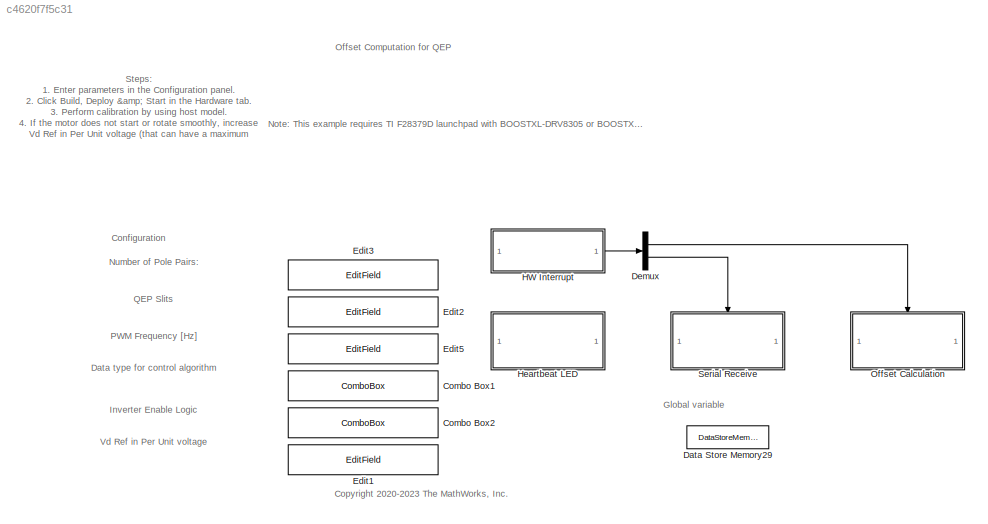
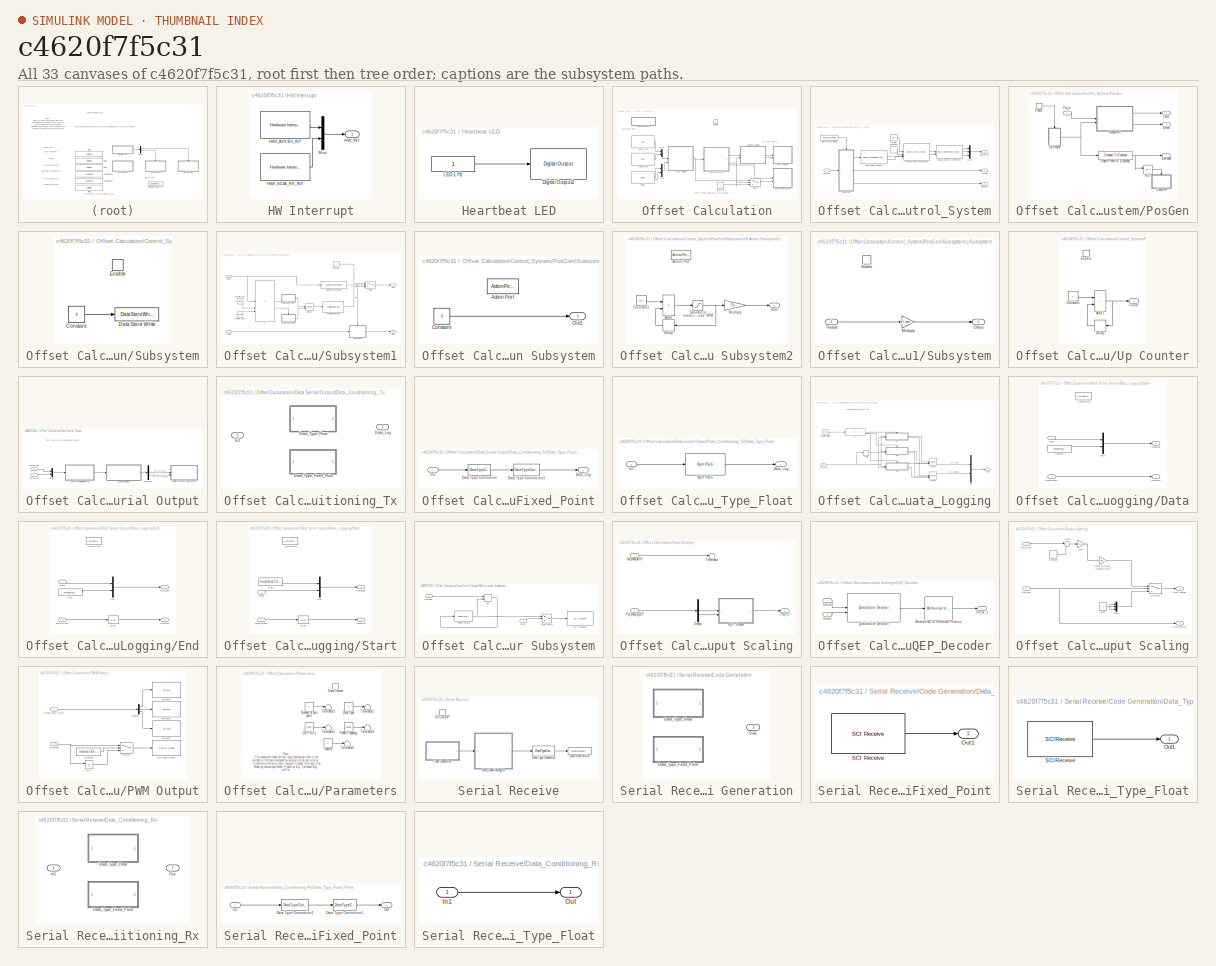
[diagram: thumbnail index - all 33 canvases of the model, root first then tree order]
MODEL slx_c4620f7f5c31
KIND model
CONFIG AbsTol = auto
CONFIG EnableMultiTasking = on
CONFIG FixedStep = auto
CONFIG InitFcn = mcb_pmsm_offset_data;\nmotor.QEPSlits   = eval(get_param([bdroot '/Offset Calculation/Parameters/QEP Slits'], 'Value'));     \ntarget = mcb_SetProcessorDetails('F28379D',PWM_frequency);\n\n%Read inverter logic from 'Configuration' panel on model\ninverter.EnableLogic = eval(get_param([bdroot '/Offset Calculation/Parameters/Inverter'],'Value'));
CONFIG MaxStep = auto
CONFIG MinStep = auto
CONFIG RelTol = 1e-3
CONFIG SampleTimeConstraint = Unconstrained
CONFIG SolverName = FixedStepDiscrete
CONFIG StartTime = 0.0
CONFIG StopTime = 2
BLOCK [ComboBox] Combo Box1
  LabelPosition = Hide
  SelectedLabel = single
BLOCK [ComboBox] Combo Box2
  LabelPosition = Hide
  SelectedLabel = Active High
BLOCK [DataStoreMemory] Data Store Memory29
  DataStoreName = Enable
  OutDataTypeStr = boolean
  ReadBeforeWriteMsg = warning
  ShowAdditionalParam = off
  WriteAfterReadMsg = warning
  WriteAfterWriteMsg = warning
BLOCK [Demux] Demux
  Outputs = 2
BLOCK [EditField] Edit1
  Alignment = Center
  LabelPosition = Hide
  ShowInitialText = on
BLOCK [EditField] Edit2
  Alignment = Center
  LabelPosition = Hide
  ShowInitialText = on
BLOCK [EditField] Edit3
  Alignment = Center
  LabelPosition = Hide
  ShowInitialText = on
BLOCK [EditField] Edit5
  Alignment = Center
  LabelPosition = Hide
  ShowInitialText = on
BLOCK [SubSystem] HW Interrupt
BLOCK [Reference] HW Interrupt/HWI_ADCB1_INT  REF=svdschedulerlib/Hardware Interrupt v2
  LibrarySourceBlock = c2000lib/Scheduling/Hardware Interrupt
  SourceBlock = svdschedulerlib/Hardware Interrupt v2
  SourceType = HardwareInterrupt
  UserDataPersistent = on
BLOCK [Reference] HW Interrupt/HWI_SCIA_RX_INT  REF=svdschedulerlib/Hardware Interrupt v2
  LibrarySourceBlock = c2000lib/Scheduling/Hardware Interrupt
  SourceBlock = svdschedulerlib/Hardware Interrupt v2
  SourceType = HardwareInterrupt
  UserDataPersistent = on
BLOCK [Outport] HW Interrupt/HW_INT
BLOCK [Mux] HW Interrupt/Mux
  DisplayOption = bar
  Inputs = 2
BLOCK [SubSystem] Heartbeat LED
  TreatAsAtomicUnit = on
BLOCK [Reference] Heartbeat LED/Digital Output2  REF=c2837xDlib/Digital Output
  SourceBlock = c2837xDlib/Digital Output
  SourceType = F2837x GPIO Digital Output
  UserDataPersistent = on
BLOCK [Constant] Heartbeat LED/LED 1 Hz
  OutDataTypeStr = uint16
  SampleTime = 0.5
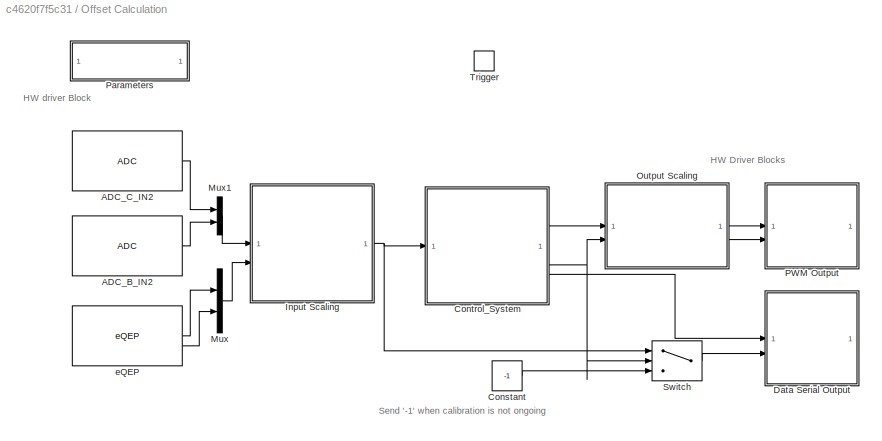
BLOCK [SubSystem] Offset Calculation
BLOCK [Reference] Offset Calculation/ADC_B_IN2  REF=c2802xlib/ADC
  SourceBlock = c2802xlib/ADC
  SourceType = ADC Type 3-5
  UserDataPersistent = on
BLOCK [Reference] Offset Calculation/ADC_C_IN2  REF=c2802xlib/ADC
  SourceBlock = c2802xlib/ADC
  SourceType = ADC Type 3-5
  UserDataPersistent = on
BLOCK [Constant] Offset Calculation/Constant
  OutDataTypeStr = dataType
  Value = -1
BLOCK [SubSystem] Offset Calculation/Control_System
BLOCK [Constant] Offset Calculation/Control_System/Constant
  OutDataTypeStr = dataType
  SampleTime = -1
  Value = 0
BLOCK [DataStoreRead] Offset Calculation/Control_System/Data Store Read
  DataStoreName = Enable
  IndexOptions = Index vector (dialog)
  Indices = 1
  OutputSizes = 1
BLOCK [Outport] Offset Calculation/Control_System/EnPWM
  Port = 2
  VectorParamsAs1DForOutWhenUnconnected = off
BLOCK [Reference] Offset Calculation/Control_System/Inverse Park Transform  REF=mcbcontrolslib/Inverse Park Transform
  SourceBlock = mcbcontrolslib/Inverse Park Transform
  SourceType = Inverse Park Transform
BLOCK [Mux] Offset Calculation/Control_System/Mux1
  DisplayOption = bar
  Inputs = 3
BLOCK [Outport] Offset Calculation/Control_System/Offset
  Port = 3
  VectorParamsAs1DForOutWhenUnconnected = off
BLOCK [SubSystem] Offset Calculation/Control_System/PosGen
BLOCK [Outport] Offset Calculation/Control_System/PosGen/EnPWM
  InitialOutput = 0
  OutputWhenDisabled = reset
  Port = 3
BLOCK [EnablePort] Offset Calculation/Control_System/PosGen/Enable
  ShowOutputPort = on
  StatesWhenEnabling = reset
BLOCK [Reference] Offset Calculation/Control_System/PosGen/Enable PWM for 15 seconds  REF=simulink/Logic and Bit
Operations/Compare
To Constant
  SourceBlock = simulink/Logic and Bit\nOperations/Compare\nTo Constant
  SourceType = Compare To Constant
BLOCK [Logic] Offset Calculation/Control_System/PosGen/NOT
  AllPortsSameDT = off
  IconShape = distinctive
  Operator = NOT
  OutDataTypeStr = boolean
BLOCK [Outport] Offset Calculation/Control_System/PosGen/Offset
  Port = 2
BLOCK [Inport] Offset Calculation/Control_System/PosGen/Pos_In
BLOCK [SubSystem] Offset Calculation/Control_System/PosGen/Subsystem
BLOCK [Constant] Offset Calculation/Control_System/PosGen/Subsystem/Constant
  OutDataTypeStr = Inherit: Inherit via back propagation
  Value = 0
BLOCK [DataStoreWrite] Offset Calculation/Control_System/PosGen/Subsystem/Data Store Write
  DataStoreName = Enable
  IndexOptions = Index vector (dialog)
  Indices = 1
  OutputSizes = 1
BLOCK [EnablePort] Offset Calculation/Control_System/PosGen/Subsystem/Enable
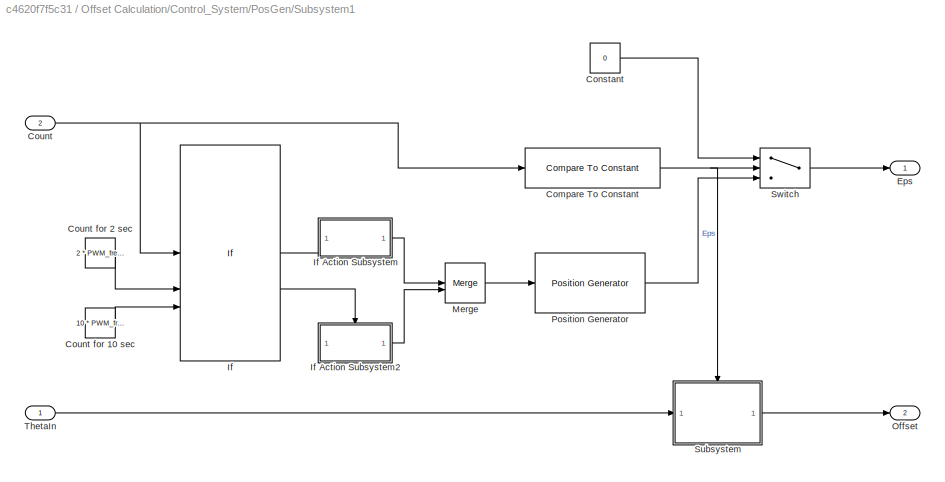
BLOCK [SubSystem] Offset Calculation/Control_System/PosGen/Subsystem1
BLOCK [Reference] Offset Calculation/Control_System/PosGen/Subsystem1/Compare To Constant  REF=simulink/Logic and Bit
Operations/Compare
To Constant
  SourceBlock = simulink/Logic and Bit\nOperations/Compare\nTo Constant
  SourceType = Compare To Constant
BLOCK [Constant] Offset Calculation/Control_System/PosGen/Subsystem1/Constant
  OutDataTypeStr = dataType
  SampleTime = -1
  Value = 0
BLOCK [Inport] Offset Calculation/Control_System/PosGen/Subsystem1/Count
  Port = 2
BLOCK [Constant] Offset Calculation/Control_System/PosGen/Subsystem1/Count for 10 sec
  OutDataTypeStr = uint32
  SampleTime = -1
  Value = 10 * PWM_frequency
BLOCK [Constant] Offset Calculation/Control_System/PosGen/Subsystem1/Count for 2 sec
  OutDataTypeStr = uint32
  SampleTime = -1
  Value = 2 * PWM_frequency
BLOCK [Outport] Offset Calculation/Control_System/PosGen/Subsystem1/Eps
BLOCK [If] Offset Calculation/Control_System/PosGen/Subsystem1/If
  ElseIfExpressions = u1 < u3
  IfExpression = u1 < u2
  NumInputs = 3
  ShowElse = off
BLOCK [SubSystem] Offset Calculation/Control_System/PosGen/Subsystem1/If Action Subsystem
  TreatAsAtomicUnit = on
BLOCK [ActionPort] Offset Calculation/Control_System/PosGen/Subsystem1/If Action Subsystem/Action Port
  ActionPortLabel = if(u1 < u2)
BLOCK [Constant] Offset Calculation/Control_System/PosGen/Subsystem1/If Action Subsystem/Constant
  OutDataTypeStr = dataType
  SampleTime = -1
  Value = 0
BLOCK [Outport] Offset Calculation/Control_System/PosGen/Subsystem1/If Action Subsystem/Out1
BLOCK [SubSystem] Offset Calculation/Control_System/PosGen/Subsystem1/If Action Subsystem2
  TreatAsAtomicUnit = on
BLOCK [ActionPort] Offset Calculation/Control_System/PosGen/Subsystem1/If Action Subsystem2/Action Port
  ActionPortLabel = elseif(u1 < u3)
BLOCK [Sum] Offset Calculation/Control_System/PosGen/Subsystem1/If Action Subsystem2/Add1
  IconShape = rectangular
BLOCK [Constant] Offset Calculation/Control_System/PosGen/Subsystem1/If Action Subsystem2/Constant1
  OutDataTypeStr = dataType
  SampleTime = -1
  Value = 1e-3
BLOCK [Delay] Offset Calculation/Control_System/PosGen/Subsystem1/If Action Subsystem2/Delay
  DelayLength = 1
  InputPortMap = u0
BLOCK [Gain] Offset Calculation/Control_System/PosGen/Subsystem1/If Action Subsystem2/Multiply
  Gain = Ts
  OutDataTypeStr = dataType
BLOCK [Outport] Offset Calculation/Control_System/PosGen/Subsystem1/If Action Subsystem2/Out1
BLOCK [Saturate] Offset Calculation/Control_System/PosGen/Subsystem1/If Action Subsystem2/Saturate to 'motor.calibSpeed' RPM
  LowerLimit = 0
  UpperLimit = motor.polePairs * motor.calibSpeed / 60
BLOCK [Merge] Offset Calculation/Control_System/PosGen/Subsystem1/Merge
BLOCK [Outport] Offset Calculation/Control_System/PosGen/Subsystem1/Offset
  Port = 2
BLOCK [Reference] Offset Calculation/Control_System/PosGen/Subsystem1/Position Generator  REF=mcbcontrolslib/Position Generator
  SourceBlock = mcbcontrolslib/Position Generator
  SourceType = Position Generator
BLOCK [SubSystem] Offset Calculation/Control_System/PosGen/Subsystem1/Subsystem
BLOCK [EnablePort] Offset Calculation/Control_System/PosGen/Subsystem1/Subsystem/Enable
BLOCK [Gain] Offset Calculation/Control_System/PosGen/Subsystem1/Subsystem/Multiply
  Gain = 1 / motor.polePairs
  OutDataTypeStr = Inherit: Same as input
BLOCK [Outport] Offset Calculation/Control_System/PosGen/Subsystem1/Subsystem/Offset
  InitialOutput = 0
  OutputWhenDisabled = reset
BLOCK [Inport] Offset Calculation/Control_System/PosGen/Subsystem1/Subsystem/ThetaIn
BLOCK [Switch] Offset Calculation/Control_System/PosGen/Subsystem1/Switch
  Criteria = u2 > Threshold
  InputSameDT = off
  SaturateOnIntegerOverflow = off
  Threshold = 0.5
BLOCK [Inport] Offset Calculation/Control_System/PosGen/Subsystem1/ThetaIn
BLOCK [Outport] Offset Calculation/Control_System/PosGen/Theta
BLOCK [SubSystem] Offset Calculation/Control_System/PosGen/Up Counter
BLOCK [Sum] Offset Calculation/Control_System/PosGen/Up Counter/Add1
  IconShape = rectangular
  SaturateOnIntegerOverflow = on
BLOCK [Constant] Offset Calculation/Control_System/PosGen/Up Counter/Constant
  OutDataTypeStr = uint32
BLOCK [Outport] Offset Calculation/Control_System/PosGen/Up Counter/Count
  InitialOutput = 0
  OutputWhenDisabled = reset
BLOCK [Delay] Offset Calculation/Control_System/PosGen/Up Counter/Delay
  DelayLength = 1
  InputPortMap = u0
BLOCK [EnablePort] Offset Calculation/Control_System/PosGen/Up Counter/Enable
  StatesWhenEnabling = reset
BLOCK [Inport] Offset Calculation/Control_System/Pos_PU
BLOCK [Reference] Offset Calculation/Control_System/Sine-Cosine Lookup  REF=mcbcontrolslib/SinCos Embedded Optimized
  SourceBlock = mcbcontrolslib/SinCos Embedded Optimized
  SourceType = SinCos Embedded Optimized
BLOCK [Reference] Offset Calculation/Control_System/Space Vector Generator  REF=mcbcontrolslib/PWM Reference Generator
  SourceBlock = mcbcontrolslib/PWM Reference Generator
  SourceType = PWM Modulation
BLOCK [Outport] Offset Calculation/Control_System/Vabc in PU
  VectorParamsAs1DForOutWhenUnconnected = off
BLOCK [Constant] Offset Calculation/Control_System/Vd_Ref
  OutDataTypeStr = dataType
  SampleTime = -1
  Value = 0.15
BLOCK [SubSystem] Offset Calculation/Data Serial Output
BLOCK [Inport] Offset Calculation/Data Serial Output/Data1_Log
  Port = 2
BLOCK [Inport] Offset Calculation/Data Serial Output/Data2_Log
BLOCK [SubSystem] Offset Calculation/Data Serial Output/Data_Conditioning_Tx
  Variant = on
BLOCK [Outport] Offset Calculation/Data Serial Output/Data_Conditioning_Tx/Data_Log
BLOCK [SubSystem] Offset Calculation/Data Serial Output/Data_Conditioning_Tx/Data_Type_Fixed_Point
  VariantControl = ~isequal(dataType,'single')
BLOCK [DataTypeConversion] Offset Calculation/Data Serial Output/Data_Conditioning_Tx/Data_Type_Fixed_Point/Data Type Conversion
  OutDataTypeStr = fixdt(1,32,28)
  RndMeth = Simplest
  SaturateOnIntegerOverflow = off
BLOCK [DataTypeConversion] Offset Calculation/Data Serial Output/Data_Conditioning_Tx/Data_Type_Fixed_Point/Data Type Conversion3
  ConvertRealWorld = Stored Integer (SI)
  OutDataTypeStr = uint32
  RndMeth = Simplest
  SaturateOnIntegerOverflow = off
BLOCK [Outport] Offset Calculation/Data Serial Output/Data_Conditioning_Tx/Data_Type_Fixed_Point/Data_Log
BLOCK [Inport] Offset Calculation/Data Serial Output/Data_Conditioning_Tx/Data_Type_Fixed_Point/In1
BLOCK [SubSystem] Offset Calculation/Data Serial Output/Data_Conditioning_Tx/Data_Type_Float
  VariantControl = isequal(dataType, 'single')
BLOCK [Reference] Offset Calculation/Data Serial Output/Data_Conditioning_Tx/Data_Type_Float/Byte Pack  REF=svdutilitieslib/Byte Pack
  SourceBlock = svdutilitieslib/Byte Pack
  SourceType = Byte pack
BLOCK [Outport] Offset Calculation/Data Serial Output/Data_Conditioning_Tx/Data_Type_Float/Data_Log
BLOCK [Inport] Offset Calculation/Data Serial Output/Data_Conditioning_Tx/Data_Type_Float/In1
BLOCK [Inport] Offset Calculation/Data Serial Output/Data_Conditioning_Tx/In1
BLOCK [SubSystem] Offset Calculation/Data Serial Output/Data_Logging
BLOCK [Reference] Offset Calculation/Data Serial Output/Data_Logging/Counter Limited  REF=simulink/Sources/Counter
Limited
  SourceBlock = simulink/Sources/Counter\nLimited
  SourceType = Counter Limited
BLOCK [SubSystem] Offset Calculation/Data Serial Output/Data_Logging/Data
  TreatAsAtomicUnit = on
BLOCK [ActionPort] Offset Calculation/Data Serial Output/Data_Logging/Data/Action Port
  ActionPortLabel = else
BLOCK [Inport] Offset Calculation/Data Serial Output/Data_Logging/Data/Data
BLOCK [Outport] Offset Calculation/Data Serial Output/Data_Logging/Data/Data_out
  VectorParamsAs1DForOutWhenUnconnected = off
BLOCK [Inport] Offset Calculation/Data Serial Output/Data_Logging/Data/Data_width
  Port = 2
BLOCK [Constant] Offset Calculation/Data Serial Output/Data_Logging/Data/Dummy
  OutDataTypeStr = uint32
  Value = hex2dec('0000')
BLOCK [Outport] Offset Calculation/Data Serial Output/Data_Logging/Data/Iteration
  Port = 2
  VectorParamsAs1DForOutWhenUnconnected = off
BLOCK [Mux] Offset Calculation/Data Serial Output/Data_Logging/Data/Mux
  DisplayOption = bar
  Inputs = 2
BLOCK [Inport] Offset Calculation/Data Serial Output/Data_Logging/Data_Log
BLOCK [SubSystem] Offset Calculation/Data Serial Output/Data_Logging/End
  TreatAsAtomicUnit = on
BLOCK [ActionPort] Offset Calculation/Data Serial Output/Data_Logging/End/Action Port
  ActionPortLabel = elseif(u1 == 599)
BLOCK [Bias] Offset Calculation/Data Serial Output/Data_Logging/End/Bias
  Bias = 1
  SaturateOnIntegerOverflow = off
BLOCK [Inport] Offset Calculation/Data Serial Output/Data_Logging/End/Data
BLOCK [Outport] Offset Calculation/Data Serial Output/Data_Logging/End/Data_out
  VectorParamsAs1DForOutWhenUnconnected = off
BLOCK [Inport] Offset Calculation/Data Serial Output/Data_Logging/End/Data_width
  Port = 2
BLOCK [Constant] Offset Calculation/Data Serial Output/Data_Logging/End/End
  OutDataTypeStr = uint32
  Value = hex2dec('45454545')
BLOCK [Outport] Offset Calculation/Data Serial Output/Data_Logging/End/Iteration
  Port = 2
  VectorParamsAs1DForOutWhenUnconnected = off
BLOCK [Mux] Offset Calculation/Data Serial Output/Data_Logging/End/Mux
  DisplayOption = bar
  Inputs = 2
BLOCK [If] Offset Calculation/Data Serial Output/Data_Logging/If
  ElseIfExpressions = u1 == 599
  IfExpression = u1 == 0
BLOCK [Merge] Offset Calculation/Data Serial Output/Data_Logging/Merge
  Inputs = 3
BLOCK [Merge] Offset Calculation/Data Serial Output/Data_Logging/Merge1
  Inputs = 3
BLOCK [Mux] Offset Calculation/Data Serial Output/Data_Logging/Mux
  DisplayOption = bar
  Inputs = 2
BLOCK [Outport] Offset Calculation/Data Serial Output/Data_Logging/SCI_Tx
BLOCK [SubSystem] Offset Calculation/Data Serial Output/Data_Logging/Start
  TreatAsAtomicUnit = on
BLOCK [ActionPort] Offset Calculation/Data Serial Output/Data_Logging/Start/Action Port
  ActionPortLabel = if(u1 == 0)
BLOCK [Bias] Offset Calculation/Data Serial Output/Data_Logging/Start/Bias
  Bias = 1
  SaturateOnIntegerOverflow = off
BLOCK [Inport] Offset Calculation/Data Serial Output/Data_Logging/Start/Data
BLOCK [Outport] Offset Calculation/Data Serial Output/Data_Logging/Start/Data_out
  VectorParamsAs1DForOutWhenUnconnected = off
BLOCK [Inport] Offset Calculation/Data Serial Output/Data_Logging/Start/Data_width
  Port = 2
BLOCK [Outport] Offset Calculation/Data Serial Output/Data_Logging/Start/Iteration
  Port = 2
  VectorParamsAs1DForOutWhenUnconnected = off
BLOCK [Mux] Offset Calculation/Data Serial Output/Data_Logging/Start/Mux
  DisplayOption = bar
  Inputs = 2
BLOCK [Constant] Offset Calculation/Data Serial Output/Data_Logging/Start/Start
  OutDataTypeStr = uint32
  Value = hex2dec('53535353')
BLOCK [Width] Offset Calculation/Data Serial Output/Data_Logging/Width
  DataType = uint16
  OutDataTypeMode = All ports same datatype
BLOCK [Demux] Offset Calculation/Data Serial Output/Demux2
  Outputs = 2
BLOCK [Mux] Offset Calculation/Data Serial Output/Mux
  DisplayOption = bar
  Inputs = 2
BLOCK [SubSystem] Offset Calculation/Data Serial Output/While Iterator Subsystem
  TreatAsAtomicUnit = on
BLOCK [Sum] Offset Calculation/Data Serial Output/While Iterator Subsystem/Add
  IconShape = rectangular
  Inputs = +-
  OutDataTypeStr = Inherit: Same as first input
BLOCK [Inport] Offset Calculation/Data Serial Output/While Iterator Subsystem/Data
BLOCK [MultiPortSwitch] Offset Calculation/Data Serial Output/While Iterator Subsystem/Index Vector
  InputSameDT = off
  Inputs = 1
  SaturateOnIntegerOverflow = off
BLOCK [Inport] Offset Calculation/Data Serial Output/While Iterator Subsystem/Iteration
  Port = 2
BLOCK [Reference] Offset Calculation/Data Serial Output/While Iterator Subsystem/SCI Transmit  REF=c280xlib/SCI Transmit
  SourceBlock = c280xlib/SCI Transmit
  SourceType = C28x SCI Transmit
BLOCK [WhileIterator] Offset Calculation/Data Serial Output/While Iterator Subsystem/While Iterator
  MaxIters = -1
  OutputDataType = int16
  ShowIterationPort = on
  WhileBlockType = do-while
BLOCK [SubSystem] Offset Calculation/Input Scaling
BLOCK [Demux] Offset Calculation/Input Scaling/Demux
  Outputs = 2
BLOCK [Inport] Offset Calculation/Input Scaling/Iab_meas_ADC
BLOCK [Outport] Offset Calculation/Input Scaling/Pos_PU
  InitialOutput = 0
  VectorParamsAs1DForOutWhenUnconnected = off
BLOCK [Inport] Offset Calculation/Input Scaling/Pos_meas_eQEP
  Port = 2
BLOCK [Terminator] Offset Calculation/Input Scaling/Terminator
BLOCK [SubSystem] Offset Calculation/Input Scaling/eQEP_Decoder
BLOCK [Inport] Offset Calculation/Input Scaling/eQEP_Decoder/Count
BLOCK [Inport] Offset Calculation/Input Scaling/eQEP_Decoder/Index
  Port = 2
BLOCK [Reference] Offset Calculation/Input Scaling/eQEP_Decoder/Mechanical to Electrical Position  REF=mcbpositiondecoderlib/Mechanical to Electrical Position
  SourceBlock = mcbpositiondecoderlib/Mechanical to Electrical Position
  SourceType = Mechanical to Electrical Position
BLOCK [Reference] Offset Calculation/Input Scaling/eQEP_Decoder/Quadrature Decoder  REF=mcbpositiondecoderlib/Quadrature Decoder
  SourceBlock = mcbpositiondecoderlib/Quadrature Decoder
  SourceType = Quadrature Decoder
BLOCK [Outport] Offset Calculation/Input Scaling/eQEP_Decoder/Theta_e
  VectorParamsAs1DForOutWhenUnconnected = off
BLOCK [Mux] Offset Calculation/Mux
  DisplayOption = bar
  Inputs = 2
BLOCK [Mux] Offset Calculation/Mux1
  DisplayOption = bar
  Inputs = 2
BLOCK [SubSystem] Offset Calculation/Output Scaling
BLOCK [Constant] Offset Calculation/Output Scaling/Constant
  OutDataTypeStr = dataType
BLOCK [Outport] Offset Calculation/Output Scaling/Duty Output
BLOCK [Inport] Offset Calculation/Output Scaling/EnPWM
  Port = 2
BLOCK [Outport] Offset Calculation/Output Scaling/EnPWMOut
  Port = 2
BLOCK [Gain] Offset Calculation/Output Scaling/Gain
  Gain = 0.5
  OutDataTypeStr = Inherit: Same as input
BLOCK [Mux] Offset Calculation/Output Scaling/Mux2
  DisplayOption = bar
  Inputs = 3
BLOCK [Inport] Offset Calculation/Output Scaling/PWM_Duty
BLOCK [Gain] Offset Calculation/Output Scaling/Scale_to_PWM_Counter_PRD
  Gain = target.PWM_Counter_Period
  OutDataTypeStr = uint16
  RndMeth = Simplest
BLOCK [Sum] Offset Calculation/Output Scaling/Sum
  AccumDataTypeStr = Inherit: Same as first input
  Inputs = |++
BLOCK [Switch] Offset Calculation/Output Scaling/Switch4
  InputSameDT = off
  SaturateOnIntegerOverflow = off
  Threshold = 0.5
BLOCK [Constant] Offset Calculation/Output Scaling/stop
  OutDataTypeStr = dataType
  Value = 0
BLOCK [SubSystem] Offset Calculation/PWM Output
BLOCK [Constant] Offset Calculation/PWM Output/Constant
  OutDataTypeStr = uint16
  Value = inverter.EnableLogic
BLOCK [Reference] Offset Calculation/PWM Output/DRV830x Enable  REF=c2837xDlib/Digital Output
  SourceBlock = c2837xDlib/Digital Output
  SourceType = F2837x GPIO Digital Output
  UserDataPersistent = on
BLOCK [Demux] Offset Calculation/PWM Output/Demux
  Outputs = 3
BLOCK [Inport] Offset Calculation/PWM Output/EnPWM
  Port = 2
BLOCK [Logic] Offset Calculation/PWM Output/NOT
  AllPortsSameDT = off
  IconShape = distinctive
  Operator = NOT
  OutDataTypeStr = boolean
BLOCK [Inport] Offset Calculation/PWM Output/PWM Duty Cycle
BLOCK [Switch] Offset Calculation/PWM Output/Switch
  Criteria = u2 > Threshold
  InputSameDT = off
  OutDataTypeStr = boolean
  RndMeth = Simplest
  SaturateOnIntegerOverflow = off
BLOCK [Reference] Offset Calculation/PWM Output/ePWM1  REF=c2802xlib/ePWM
  SourceBlock = c2802xlib/ePWM
  SourceType = ePWM Type 1-4
  UserDataPersistent = on
BLOCK [Reference] Offset Calculation/PWM Output/ePWM2  REF=c2802xlib/ePWM
  SourceBlock = c2802xlib/ePWM
  SourceType = ePWM Type 1-4
  UserDataPersistent = on
BLOCK [Reference] Offset Calculation/PWM Output/ePWM3  REF=c2802xlib/ePWM
  SourceBlock = c2802xlib/ePWM
  SourceType = ePWM Type 1-4
  UserDataPersistent = on
BLOCK [SubSystem] Offset Calculation/Parameters
BLOCK [Constant] Offset Calculation/Parameters/Data Type
  Value = 0
BLOCK [EventListener] Offset Calculation/Parameters/Event Listener
  DisableCoverage = on
  EventName = reset
BLOCK [Constant] Offset Calculation/Parameters/Inverter
BLOCK [Constant] Offset Calculation/Parameters/Number of pole pairs
  Value = 4
BLOCK [Constant] Offset Calculation/Parameters/PWM Frequency
  Value = 20000
BLOCK [Constant] Offset Calculation/Parameters/QEP Slits
  Value = 1000
BLOCK [Terminator] Offset Calculation/Parameters/Terminator2
BLOCK [Terminator] Offset Calculation/Parameters/Terminator3
BLOCK [Terminator] Offset Calculation/Parameters/Terminator4
BLOCK [Terminator] Offset Calculation/Parameters/Terminator5
BLOCK [Terminator] Offset Calculation/Parameters/Terminator6
BLOCK [Switch] Offset Calculation/Switch
  Criteria = u2 > Threshold
  InputSameDT = off
  SaturateOnIntegerOverflow = off
BLOCK [TriggerPort] Offset Calculation/Trigger
  PortDimensions = 1
  StatesWhenEnabling = held
  TriggerType = function-call
  VariantControl = Variant
BLOCK [Reference] Offset Calculation/eQEP  REF=c280xlib/eQEP
  SourceBlock = c280xlib/eQEP
  SourceType = C28x eQEP
BLOCK [SubSystem] Serial Receive
  RTWMemSecFuncExecute = code_ramfuncs
  SystemSampleTime = 1e-3
BLOCK [SubSystem] Serial Receive/Code Generation
  Variant = on
BLOCK [SubSystem] Serial Receive/Code Generation/Data_Type_Fixed_Point
  VariantControl = ~isequal(dataType, 'single')
BLOCK [Outport] Serial Receive/Code Generation/Data_Type_Fixed_Point/Out1
BLOCK [Reference] Serial Receive/Code Generation/Data_Type_Fixed_Point/SCI Receive  REF=c280xlib/SCI Receive
  SourceBlock = c280xlib/SCI Receive
  SourceType = C28x SCI Receive
BLOCK [SubSystem] Serial Receive/Code Generation/Data_Type_Float
  VariantControl = isequal(dataType, 'single')
BLOCK [Outport] Serial Receive/Code Generation/Data_Type_Float/Out1
BLOCK [Reference] Serial Receive/Code Generation/Data_Type_Float/SCI Receive  REF=c280xlib/SCI Receive
  SourceBlock = c280xlib/SCI Receive
  SourceType = C28x SCI Receive
BLOCK [Outport] Serial Receive/Code Generation/Out1
BLOCK [DataStoreWrite] Serial Receive/Data Store Write
  DataStoreName = Enable
  IndexOptions = Index vector (dialog)
  Indices = 1
  OutputSizes = 1
BLOCK [DataTypeConversion] Serial Receive/Data Type Conversion
  OutDataTypeStr = boolean
  RndMeth = Floor
  SaturateOnIntegerOverflow = off
BLOCK [SubSystem] Serial Receive/Data_Conditioning_Rx
  Variant = on
BLOCK [SubSystem] Serial Receive/Data_Conditioning_Rx/Data_Type_Fixed_Point
  VariantControl = ~isequal(dataType, 'single')
BLOCK [DataTypeConversion] Serial Receive/Data_Conditioning_Rx/Data_Type_Fixed_Point/Data Type Conversion1
  OutDataTypeStr = dataType
  RndMeth = Simplest
  SaturateOnIntegerOverflow = off
BLOCK [DataTypeConversion] Serial Receive/Data_Conditioning_Rx/Data_Type_Fixed_Point/Data Type Conversion2
  ConvertRealWorld = Stored Integer (SI)
  OutDataTypeStr = uint16
  RndMeth = Simplest
  SaturateOnIntegerOverflow = off
BLOCK [Inport] Serial Receive/Data_Conditioning_Rx/Data_Type_Fixed_Point/In1
BLOCK [Outport] Serial Receive/Data_Conditioning_Rx/Data_Type_Fixed_Point/Out
BLOCK [SubSystem] Serial Receive/Data_Conditioning_Rx/Data_Type_Float
  VariantControl = isequal(dataType, 'single')
BLOCK [Inport] Serial Receive/Data_Conditioning_Rx/Data_Type_Float/In1
BLOCK [Outport] Serial Receive/Data_Conditioning_Rx/Data_Type_Float/Out
BLOCK [Inport] Serial Receive/Data_Conditioning_Rx/In1
BLOCK [Outport] Serial Receive/Data_Conditioning_Rx/Out
BLOCK [TriggerPort] Serial Receive/SCI_Rx_INT
  StatesWhenEnabling = held
  TriggerType = function-call
  VariantControl = Variant
ANNOTATION (root): Note: This example requires TI F28379D launchpad with BOOSTXL-DRV8305 or BOOSTXL-3PhGaNInv connected to a PMSM Motor with QEP Sensor
ANNOTATION (root): Data type for control algorithm
ANNOTATION (root): Number of Pole Pairs:
ANNOTATION (root): PWM Frequency [Hz]
ANNOTATION (root): QEP Slits
ANNOTATION (root): Vd Ref in Per Unit voltage
ANNOTATION (root): Inverter Enable Logic
ANNOTATION (root): <copyright redacted>
ANNOTATION (root): Steps: 1. Enter parameters in the Configuration panel. 2. Click Build, Deploy & Start in the Hardware tab. 3. Perform calibration by using host model . 4. If the motor does not start or rotate smoothly, increase Vd Ref in Per Unit voltage (that can have a maximum value of 1) in the Configuration panel. 5. If the current drawn by the connected motor is too high, reduce the value mentioned in step 4...<+35ch>
ANNOTATION (root): Configuration
ANNOTATION (root): Global variable
ANNOTATION (root): Offset Computation for QEP
ANNOTATION Offset Calculation: Send '-1' when calibration is not ongoing
ANNOTATION Offset Calculation: HW Driver Blocks
ANNOTATION Offset Calculation: HW driver Block
ANNOTATION Offset Calculation/Data Serial Output: Fast Serial Data Monitoring (16-bit)
ANNOTATION Offset Calculation/Data Serial Output/Data_Logging: Fast Serial Data Monitoring (32-bit)
ANNOTATION Offset Calculation/Parameters: Note: - This subsystem reads the user inputs and assigns them to the variables in the base workspace by using an initialization script. - To determine the script name, navigate to Model Settings in the Modeling tab and open Model Properties > Callbacks > InitFcn . - Ensure that these variables are created in the base workspace and have correct values for algorithm export (generate code only for co...<+88ch>
LINE Demux:1 -> Offset Calculation:trigger
LINE Demux:2 -> Serial Receive:trigger
LINE HW Interrupt/HWI_ADCB1_INT:1 -> HW Interrupt/Mux:1
LINE HW Interrupt/HWI_SCIA_RX_INT:1 -> HW Interrupt/Mux:2
LINE HW Interrupt/Mux:1 -> HW Interrupt/HW_INT:1
LINE HW Interrupt:1 -> Demux:1
LINE Heartbeat LED/LED 1 Hz:1 -> Heartbeat LED/Digital Output2:1
LINE Offset Calculation/ADC_B_IN2:1 -> Offset Calculation/Mux1:2
LINE Offset Calculation/ADC_C_IN2:1 -> Offset Calculation/Mux1:1
LINE Offset Calculation/Constant:1 -> Offset Calculation/Switch:3
LINE Offset Calculation/Control_System/Constant:1 -> Offset Calculation/Control_System/Inverse Park Transform:2
LINE Offset Calculation/Control_System/Data Store Read:1 -> Offset Calculation/Control_System/PosGen:enable
LINE Offset Calculation/Control_System/Inverse Park Transform:1 -> Offset Calculation/Control_System/Space Vector Generator:1
LINE Offset Calculation/Control_System/Inverse Park Transform:2 -> Offset Calculation/Control_System/Space Vector Generator:2
LINE Offset Calculation/Control_System/Mux1:1 -> Offset Calculation/Control_System/Vabc in PU:1
NET Offset Calculation/Control_System/PosGen/Enable PWM for 15 seconds:1 -> Offset Calculation/Control_System/PosGen/EnPWM:1, Offset Calculation/Control_System/PosGen/NOT:1
LINE Offset Calculation/Control_System/PosGen/Enable:1 -> Offset Calculation/Control_System/PosGen/Up Counter:enable
LINE Offset Calculation/Control_System/PosGen/NOT:1 -> Offset Calculation/Control_System/PosGen/Subsystem:enable
LINE Offset Calculation/Control_System/PosGen/Pos_In:1 -> Offset Calculation/Control_System/PosGen/Subsystem1:1
LINE Offset Calculation/Control_System/PosGen/Subsystem/Constant:1 -> Offset Calculation/Control_System/PosGen/Subsystem/Data Store Write:1
NET Offset Calculation/Control_System/PosGen/Subsystem1/Compare To Constant:1 -> Offset Calculation/Control_System/PosGen/Subsystem1/Subsystem:enable, Offset Calculation/Control_System/PosGen/Subsystem1/Switch:2
LINE Offset Calculation/Control_System/PosGen/Subsystem1/Constant:1 -> Offset Calculation/Control_System/PosGen/Subsystem1/Switch:1
LINE Offset Calculation/Control_System/PosGen/Subsystem1/Count for 10 sec:1 -> Offset Calculation/Control_System/PosGen/Subsystem1/If:3
LINE Offset Calculation/Control_System/PosGen/Subsystem1/Count for 2 sec:1 -> Offset Calculation/Control_System/PosGen/Subsystem1/If:2
NET Offset Calculation/Control_System/PosGen/Subsystem1/Count:1 -> Offset Calculation/Control_System/PosGen/Subsystem1/Compare To Constant:1, Offset Calculation/Control_System/PosGen/Subsystem1/If:1
LINE Offset Calculation/Control_System/PosGen/Subsystem1/If Action Subsystem/Constant:1 -> Offset Calculation/Control_System/PosGen/Subsystem1/If Action Subsystem/Out1:1
LINE Offset Calculation/Control_System/PosGen/Subsystem1/If Action Subsystem2/Add1:1 -> Offset Calculation/Control_System/PosGen/Subsystem1/If Action Subsystem2/Saturate to 'motor.calibSpeed' RPM:1
LINE Offset Calculation/Control_System/PosGen/Subsystem1/If Action Subsystem2/Constant1:1 -> Offset Calculation/Control_System/PosGen/Subsystem1/If Action Subsystem2/Add1:1
LINE Offset Calculation/Control_System/PosGen/Subsystem1/If Action Subsystem2/Delay:1 -> Offset Calculation/Control_System/PosGen/Subsystem1/If Action Subsystem2/Add1:2
LINE Offset Calculation/Control_System/PosGen/Subsystem1/If Action Subsystem2/Multiply:1 -> Offset Calculation/Control_System/PosGen/Subsystem1/If Action Subsystem2/Out1:1
NET Offset Calculation/Control_System/PosGen/Subsystem1/If Action Subsystem2/Saturate to 'motor.calibSpeed' RPM:1 -> Offset Calculation/Control_System/PosGen/Subsystem1/If Action Subsystem2/Delay:1, Offset Calculation/Control_System/PosGen/Subsystem1/If Action Subsystem2/Multiply:1
LINE Offset Calculation/Control_System/PosGen/Subsystem1/If Action Subsystem2:1 -> Offset Calculation/Control_System/PosGen/Subsystem1/Merge:2
LINE Offset Calculation/Control_System/PosGen/Subsystem1/If Action Subsystem:1 -> Offset Calculation/Control_System/PosGen/Subsystem1/Merge:1
LINE Offset Calculation/Control_System/PosGen/Subsystem1/If:1 -> Offset Calculation/Control_System/PosGen/Subsystem1/If Action Subsystem:ifaction
LINE Offset Calculation/Control_System/PosGen/Subsystem1/If:2 -> Offset Calculation/Control_System/PosGen/Subsystem1/If Action Subsystem2:ifaction
LINE Offset Calculation/Control_System/PosGen/Subsystem1/Merge:1 -> Offset Calculation/Control_System/PosGen/Subsystem1/Position Generator:1
LINE Offset Calculation/Control_System/PosGen/Subsystem1/Position Generator:1 -> Offset Calculation/Control_System/PosGen/Subsystem1/Switch:3
LINE Offset Calculation/Control_System/PosGen/Subsystem1/Subsystem/Multiply:1 -> Offset Calculation/Control_System/PosGen/Subsystem1/Subsystem/Offset:1
LINE Offset Calculation/Control_System/PosGen/Subsystem1/Subsystem/ThetaIn:1 -> Offset Calculation/Control_System/PosGen/Subsystem1/Subsystem/Multiply:1
LINE Offset Calculation/Control_System/PosGen/Subsystem1/Subsystem:1 -> Offset Calculation/Control_System/PosGen/Subsystem1/Offset:1
LINE Offset Calculation/Control_System/PosGen/Subsystem1/Switch:1 -> Offset Calculation/Control_System/PosGen/Subsystem1/Eps:1
LINE Offset Calculation/Control_System/PosGen/Subsystem1/ThetaIn:1 -> Offset Calculation/Control_System/PosGen/Subsystem1/Subsystem:1
LINE Offset Calculation/Control_System/PosGen/Subsystem1:1 -> Offset Calculation/Control_System/PosGen/Theta:1
LINE Offset Calculation/Control_System/PosGen/Subsystem1:2 -> Offset Calculation/Control_System/PosGen/Offset:1
NET Offset Calculation/Control_System/PosGen/Up Counter/Add1:1 -> Offset Calculation/Control_System/PosGen/Up Counter/Count:1, Offset Calculation/Control_System/PosGen/Up Counter/Delay:1
LINE Offset Calculation/Control_System/PosGen/Up Counter/Constant:1 -> Offset Calculation/Control_System/PosGen/Up Counter/Add1:1
LINE Offset Calculation/Control_System/PosGen/Up Counter/Delay:1 -> Offset Calculation/Control_System/PosGen/Up Counter/Add1:2
NET Offset Calculation/Control_System/PosGen/Up Counter:1 -> Offset Calculation/Control_System/PosGen/Enable PWM for 15 seconds:1, Offset Calculation/Control_System/PosGen/Subsystem1:2
LINE Offset Calculation/Control_System/PosGen:1 -> Offset Calculation/Control_System/Sine-Cosine Lookup:1
LINE Offset Calculation/Control_System/PosGen:2 -> Offset Calculation/Control_System/Offset:1
LINE Offset Calculation/Control_System/PosGen:3 -> Offset Calculation/Control_System/EnPWM:1
LINE Offset Calculation/Control_System/Pos_PU:1 -> Offset Calculation/Control_System/PosGen:1
LINE Offset Calculation/Control_System/Sine-Cosine Lookup:1 -> Offset Calculation/Control_System/Inverse Park Transform:3
LINE Offset Calculation/Control_System/Sine-Cosine Lookup:2 -> Offset Calculation/Control_System/Inverse Park Transform:4
LINE Offset Calculation/Control_System/Space Vector Generator:1 -> Offset Calculation/Control_System/Mux1:1
LINE Offset Calculation/Control_System/Space Vector Generator:2 -> Offset Calculation/Control_System/Mux1:2
LINE Offset Calculation/Control_System/Space Vector Generator:3 -> Offset Calculation/Control_System/Mux1:3
LINE Offset Calculation/Control_System/Vd_Ref:1 -> Offset Calculation/Control_System/Inverse Park Transform:1
LINE Offset Calculation/Control_System:1 -> Offset Calculation/Output Scaling:1
NET Offset Calculation/Control_System:2 -> Offset Calculation/Output Scaling:2, Offset Calculation/Switch:2
LINE Offset Calculation/Control_System:3 -> Offset Calculation/Data Serial Output:1
LINE Offset Calculation/Data Serial Output/Data1_Log:1 -> Offset Calculation/Data Serial Output/Mux:1
LINE Offset Calculation/Data Serial Output/Data2_Log:1 -> Offset Calculation/Data Serial Output/Mux:2
LINE Offset Calculation/Data Serial Output/Data_Conditioning_Tx/Data_Type_Fixed_Point/Data Type Conversion3:1 -> Offset Calculation/Data Serial Output/Data_Conditioning_Tx/Data_Type_Fixed_Point/Data_Log:1
LINE Offset Calculation/Data Serial Output/Data_Conditioning_Tx/Data_Type_Fixed_Point/Data Type Conversion:1 -> Offset Calculation/Data Serial Output/Data_Conditioning_Tx/Data_Type_Fixed_Point/Data Type Conversion3:1
LINE Offset Calculation/Data Serial Output/Data_Conditioning_Tx/Data_Type_Fixed_Point/In1:1 -> Offset Calculation/Data Serial Output/Data_Conditioning_Tx/Data_Type_Fixed_Point/Data Type Conversion:1
LINE Offset Calculation/Data Serial Output/Data_Conditioning_Tx/Data_Type_Float/Byte Pack:1 -> Offset Calculation/Data Serial Output/Data_Conditioning_Tx/Data_Type_Float/Data_Log:1
LINE Offset Calculation/Data Serial Output/Data_Conditioning_Tx/Data_Type_Float/In1:1 -> Offset Calculation/Data Serial Output/Data_Conditioning_Tx/Data_Type_Float/Byte Pack:1
LINE Offset Calculation/Data Serial Output/Data_Conditioning_Tx:1 -> Offset Calculation/Data Serial Output/Data_Logging:1
LINE Offset Calculation/Data Serial Output/Data_Logging/Counter Limited:1 -> Offset Calculation/Data Serial Output/Data_Logging/If:1
LINE Offset Calculation/Data Serial Output/Data_Logging/Data/Data:1 -> Offset Calculation/Data Serial Output/Data_Logging/Data/Mux:1
LINE Offset Calculation/Data Serial Output/Data_Logging/Data/Data_width:1 -> Offset Calculation/Data Serial Output/Data_Logging/Data/Iteration:1
LINE Offset Calculation/Data Serial Output/Data_Logging/Data/Dummy:1 -> Offset Calculation/Data Serial Output/Data_Logging/Data/Mux:2
LINE Offset Calculation/Data Serial Output/Data_Logging/Data/Mux:1 -> Offset Calculation/Data Serial Output/Data_Logging/Data/Data_out:1
LINE Offset Calculation/Data Serial Output/Data_Logging/Data:1 -> Offset Calculation/Data Serial Output/Data_Logging/Merge:3
LINE Offset Calculation/Data Serial Output/Data_Logging/Data:2 -> Offset Calculation/Data Serial Output/Data_Logging/Merge1:3
NET Offset Calculation/Data Serial Output/Data_Logging/Data_Log:1 -> Offset Calculation/Data Serial Output/Data_Logging/Data:1, Offset Calculation/Data Serial Output/Data_Logging/End:1, Offset Calculation/Data Serial Output/Data_Logging/Start:1, Offset Calculation/Data Serial Output/Data_Logging/Width:1
LINE Offset Calculation/Data Serial Output/Data_Logging/End/Bias:1 -> Offset Calculation/Data Serial Output/Data_Logging/End/Iteration:1
LINE Offset Calculation/Data Serial Output/Data_Logging/End/Data:1 -> Offset Calculation/Data Serial Output/Data_Logging/End/Mux:1
LINE Offset Calculation/Data Serial Output/Data_Logging/End/Data_width:1 -> Offset Calculation/Data Serial Output/Data_Logging/End/Bias:1
LINE Offset Calculation/Data Serial Output/Data_Logging/End/End:1 -> Offset Calculation/Data Serial Output/Data_Logging/End/Mux:2
LINE Offset Calculation/Data Serial Output/Data_Logging/End/Mux:1 -> Offset Calculation/Data Serial Output/Data_Logging/End/Data_out:1
LINE Offset Calculation/Data Serial Output/Data_Logging/End:1 -> Offset Calculation/Data Serial Output/Data_Logging/Merge:2
LINE Offset Calculation/Data Serial Output/Data_Logging/End:2 -> Offset Calculation/Data Serial Output/Data_Logging/Merge1:2
LINE Offset Calculation/Data Serial Output/Data_Logging/If:1 -> Offset Calculation/Data Serial Output/Data_Logging/Start:ifaction
LINE Offset Calculation/Data Serial Output/Data_Logging/If:2 -> Offset Calculation/Data Serial Output/Data_Logging/End:ifaction
LINE Offset Calculation/Data Serial Output/Data_Logging/If:3 -> Offset Calculation/Data Serial Output/Data_Logging/Data:ifaction
LINE Offset Calculation/Data Serial Output/Data_Logging/Merge1:1 -> Offset Calculation/Data Serial Output/Data_Logging/Mux:2
LINE Offset Calculation/Data Serial Output/Data_Logging/Merge:1 -> Offset Calculation/Data Serial Output/Data_Logging/Mux:1
LINE Offset Calculation/Data Serial Output/Data_Logging/Mux:1 -> Offset Calculation/Data Serial Output/Data_Logging/SCI_Tx:1
LINE Offset Calculation/Data Serial Output/Data_Logging/Start/Bias:1 -> Offset Calculation/Data Serial Output/Data_Logging/Start/Iteration:1
LINE Offset Calculation/Data Serial Output/Data_Logging/Start/Data:1 -> Offset Calculation/Data Serial Output/Data_Logging/Start/Mux:2
LINE Offset Calculation/Data Serial Output/Data_Logging/Start/Data_width:1 -> Offset Calculation/Data Serial Output/Data_Logging/Start/Bias:1
LINE Offset Calculation/Data Serial Output/Data_Logging/Start/Mux:1 -> Offset Calculation/Data Serial Output/Data_Logging/Start/Data_out:1
LINE Offset Calculation/Data Serial Output/Data_Logging/Start/Start:1 -> Offset Calculation/Data Serial Output/Data_Logging/Start/Mux:1
LINE Offset Calculation/Data Serial Output/Data_Logging/Start:1 -> Offset Calculation/Data Serial Output/Data_Logging/Merge:1
LINE Offset Calculation/Data Serial Output/Data_Logging/Start:2 -> Offset Calculation/Data Serial Output/Data_Logging/Merge1:1
NET Offset Calculation/Data Serial Output/Data_Logging/Width:1 -> Offset Calculation/Data Serial Output/Data_Logging/Data:2, Offset Calculation/Data Serial Output/Data_Logging/End:2, Offset Calculation/Data Serial Output/Data_Logging/Start:2
LINE Offset Calculation/Data Serial Output/Data_Logging:1 -> Offset Calculation/Data Serial Output/Demux2:1
LINE Offset Calculation/Data Serial Output/Demux2:1 -> Offset Calculation/Data Serial Output/While Iterator Subsystem:1
LINE Offset Calculation/Data Serial Output/Demux2:2 -> Offset Calculation/Data Serial Output/While Iterator Subsystem:2
LINE Offset Calculation/Data Serial Output/Mux:1 -> Offset Calculation/Data Serial Output/Data_Conditioning_Tx:1
LINE Offset Calculation/Data Serial Output/While Iterator Subsystem/Add:1 -> Offset Calculation/Data Serial Output/While Iterator Subsystem/While Iterator:1
LINE Offset Calculation/Data Serial Output/While Iterator Subsystem/Data:1 -> Offset Calculation/Data Serial Output/While Iterator Subsystem/Index Vector:2
LINE Offset Calculation/Data Serial Output/While Iterator Subsystem/Index Vector:1 -> Offset Calculation/Data Serial Output/While Iterator Subsystem/SCI Transmit:1
LINE Offset Calculation/Data Serial Output/While Iterator Subsystem/Iteration:1 -> Offset Calculation/Data Serial Output/While Iterator Subsystem/Add:1
NET Offset Calculation/Data Serial Output/While Iterator Subsystem/While Iterator:1 -> Offset Calculation/Data Serial Output/While Iterator Subsystem/Add:2, Offset Calculation/Data Serial Output/While Iterator Subsystem/Index Vector:1
LINE Offset Calculation/Input Scaling/Demux:1 -> Offset Calculation/Input Scaling/eQEP_Decoder:1
LINE Offset Calculation/Input Scaling/Demux:2 -> Offset Calculation/Input Scaling/eQEP_Decoder:2
LINE Offset Calculation/Input Scaling/Iab_meas_ADC:1 -> Offset Calculation/Input Scaling/Terminator:1
LINE Offset Calculation/Input Scaling/Pos_meas_eQEP:1 -> Offset Calculation/Input Scaling/Demux:1
LINE Offset Calculation/Input Scaling/eQEP_Decoder/Count:1 -> Offset Calculation/Input Scaling/eQEP_Decoder/Quadrature Decoder:1
LINE Offset Calculation/Input Scaling/eQEP_Decoder/Index:1 -> Offset Calculation/Input Scaling/eQEP_Decoder/Quadrature Decoder:2
LINE Offset Calculation/Input Scaling/eQEP_Decoder/Mechanical to Electrical Position:1 -> Offset Calculation/Input Scaling/eQEP_Decoder/Theta_e:1
LINE Offset Calculation/Input Scaling/eQEP_Decoder/Quadrature Decoder:1 -> Offset Calculation/Input Scaling/eQEP_Decoder/Mechanical to Electrical Position:1
LINE Offset Calculation/Input Scaling/eQEP_Decoder:1 -> Offset Calculation/Input Scaling/Pos_PU:1
NET Offset Calculation/Input Scaling:1 -> Offset Calculation/Control_System:1, Offset Calculation/Switch:1
LINE Offset Calculation/Mux1:1 -> Offset Calculation/Input Scaling:1
LINE Offset Calculation/Mux:1 -> Offset Calculation/Input Scaling:2
LINE Offset Calculation/Output Scaling/Constant:1 -> Offset Calculation/Output Scaling/Sum:2
NET Offset Calculation/Output Scaling/EnPWM:1 -> Offset Calculation/Output Scaling/EnPWMOut:1, Offset Calculation/Output Scaling/Switch4:2
LINE Offset Calculation/Output Scaling/Gain:1 -> Offset Calculation/Output Scaling/Scale_to_PWM_Counter_PRD:1
LINE Offset Calculation/Output Scaling/Mux2:1 -> Offset Calculation/Output Scaling/Switch4:3
LINE Offset Calculation/Output Scaling/PWM_Duty:1 -> Offset Calculation/Output Scaling/Sum:1
LINE Offset Calculation/Output Scaling/Scale_to_PWM_Counter_PRD:1 -> Offset Calculation/Output Scaling/Switch4:1
LINE Offset Calculation/Output Scaling/Sum:1 -> Offset Calculation/Output Scaling/Gain:1
LINE Offset Calculation/Output Scaling/Switch4:1 -> Offset Calculation/Output Scaling/Duty Output:1
NET Offset Calculation/Output Scaling/stop:1 -> Offset Calculation/Output Scaling/Mux2:1, Offset Calculation/Output Scaling/Mux2:2, Offset Calculation/Output Scaling/Mux2:3
LINE Offset Calculation/Output Scaling:1 -> Offset Calculation/PWM Output:1
LINE Offset Calculation/Output Scaling:2 -> Offset Calculation/PWM Output:2
LINE Offset Calculation/PWM Output/Constant:1 -> Offset Calculation/PWM Output/Switch:2
LINE Offset Calculation/PWM Output/Demux:1 -> Offset Calculation/PWM Output/ePWM1:1
LINE Offset Calculation/PWM Output/Demux:2 -> Offset Calculation/PWM Output/ePWM2:1
LINE Offset Calculation/PWM Output/Demux:3 -> Offset Calculation/PWM Output/ePWM3:1
NET Offset Calculation/PWM Output/EnPWM:1 -> Offset Calculation/PWM Output/NOT:1, Offset Calculation/PWM Output/Switch:1
LINE Offset Calculation/PWM Output/NOT:1 -> Offset Calculation/PWM Output/Switch:3
LINE Offset Calculation/PWM Output/PWM Duty Cycle:1 -> Offset Calculation/PWM Output/Demux:1
LINE Offset Calculation/PWM Output/Switch:1 -> Offset Calculation/PWM Output/DRV830x Enable:1
LINE Offset Calculation/Parameters/Data Type:1 -> Offset Calculation/Parameters/Terminator2:1
LINE Offset Calculation/Parameters/Inverter:1 -> Offset Calculation/Parameters/Terminator6:1
LINE Offset Calculation/Parameters/Number of pole pairs:1 -> Offset Calculation/Parameters/Terminator3:1
LINE Offset Calculation/Parameters/PWM Frequency:1 -> Offset Calculation/Parameters/Terminator4:1
LINE Offset Calculation/Parameters/QEP Slits:1 -> Offset Calculation/Parameters/Terminator5:1
LINE Offset Calculation/Switch:1 -> Offset Calculation/Data Serial Output:2
LINE Offset Calculation/eQEP:1 -> Offset Calculation/Mux:1
LINE Offset Calculation/eQEP:2 -> Offset Calculation/Mux:2
LINE Serial Receive/Code Generation/Data_Type_Fixed_Point/SCI Receive:1 -> Serial Receive/Code Generation/Data_Type_Fixed_Point/Out1:1
LINE Serial Receive/Code Generation/Data_Type_Float/SCI Receive:1 -> Serial Receive/Code Generation/Data_Type_Float/Out1:1
LINE Serial Receive/Code Generation:1 -> Serial Receive/Data_Conditioning_Rx:1
LINE Serial Receive/Data Type Conversion:1 -> Serial Receive/Data Store Write:1
LINE Serial Receive/Data_Conditioning_Rx/Data_Type_Fixed_Point/Data Type Conversion1:1 -> Serial Receive/Data_Conditioning_Rx/Data_Type_Fixed_Point/Out:1
LINE Serial Receive/Data_Conditioning_Rx/Data_Type_Fixed_Point/Data Type Conversion2:1 -> Serial Receive/Data_Conditioning_Rx/Data_Type_Fixed_Point/Data Type Conversion1:1
LINE Serial Receive/Data_Conditioning_Rx/Data_Type_Fixed_Point/In1:1 -> Serial Receive/Data_Conditioning_Rx/Data_Type_Fixed_Point/Data Type Conversion2:1
LINE Serial Receive/Data_Conditioning_Rx/Data_Type_Float/In1:1 -> Serial Receive/Data_Conditioning_Rx/Data_Type_Float/Out:1
LINE Serial Receive/Data_Conditioning_Rx:1 -> Serial Receive/Data Type Conversion:1
note: NET lines group one-source signal fan-out (src -> all destinations, sorted); 1:1 wires keep LINE
